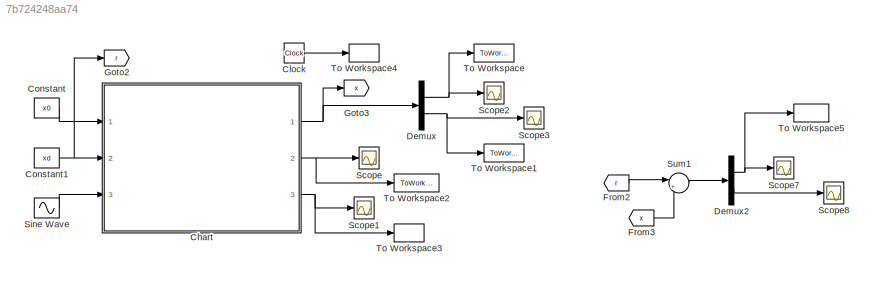
MODEL slx_7b724248aa74
KIND model
CONFIG AbsTol = auto
CONFIG EnableMultiTasking = on
CONFIG FixedStep = 0.1
CONFIG InitFcn = clear\nclc\n%% dati\nw0 = 5.278;\nalfa1 = w0^2;\nalfa3 = -1.402*w0^2;\nalfa5 = 0.271*w0^2;\nmu1 = 0.086;\nmu3 = 0.1080;\n%% parametri SMC\nmu = 20;\nP = [1 3]';\nx0 = [-1.2 -0.18]';\nxd = [0 0]';\nAd = 5; %ampiezza disturbo\nfd = 2; %frequenza disturbo\nepsilon = 0.1; %boundary layer
CONFIG MaxStep = 1e-3
CONFIG MinStep = auto
CONFIG RelTol = 1e-3
CONFIG SampleTimeConstraint = Unconstrained
CONFIG SolverName = VariableStepAuto
CONFIG StartTime = 0.0
CONFIG StopTime = 20
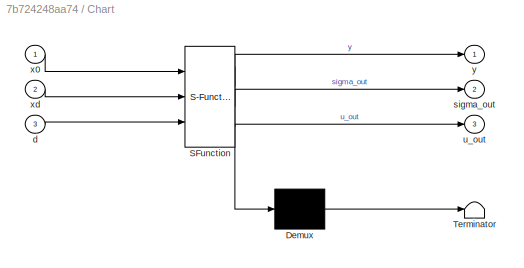
BLOCK [SubSystem] Chart
  ErrorFcn = Stateflow.Translate.translate
  PermitHierarchicalResolution = ExplicitOnly
  Ports = [3, 3]
  RequestExecContextInheritance = off
  SFBlockType = Chart
  TreatAsAtomicUnit = on
BLOCK [Demux] Chart/ Demux 
  Outputs = 1
  Ports = [1, 1]
BLOCK [S-Function] Chart/ SFunction 
  EnableBusSupport = on
  FunctionName = sf_sfun
  Parameters = P,alfa1,alfa3,alfa5,mu,mu1,mu3
  PortCounts = [3 4]
  Ports = [3, 4]
  SFcnIsStateOwnerBlock = off
  SFunctionDeploymentMode = off
  Tag = Stateflow S-Function 3
BLOCK [Terminator] Chart/ Terminator 
BLOCK [Inport] Chart/d
  Port = 3
BLOCK [Outport] Chart/sigma_out
  Port = 2
BLOCK [Outport] Chart/u_out
  Port = 3
BLOCK [Inport] Chart/x0
BLOCK [Inport] Chart/xd
  Port = 2
BLOCK [Outport] Chart/y
BLOCK [Clock] Clock
BLOCK [Constant] Constant
  Value = x0
BLOCK [Constant] Constant1
  Value = xd
BLOCK [Demux] Demux
  Outputs = 2
  Ports = [1, 2]
BLOCK [Demux] Demux2
  Outputs = 2
  Ports = [1, 2]
BLOCK [From] From2
  GotoTag = r
BLOCK [From] From3
  GotoTag = x
BLOCK [Goto] Goto2
  GotoTag = r
BLOCK [Goto] Goto3
  GotoTag = x
BLOCK [Scope] Scope
  Floating = off
  NumInputPorts = 1
  Ports = [1]
  ScopeSpecificationString = Simulink.scopes.TimeScopeBlockCfg('CurrentConfiguration', extmgr.ConfigurationSet(extmgr.Configuration('Core','General UI',true),extmgr.Configuration('Core','Source UI',true),extmgr.Configuration('Sources','WiredSimulink',true),extmgr.Configuration('Visuals','Time Domain',true,'SerializedDisplays',{struct('MinYLimReal','-1.9575','MaxYLimReal','0.2175','YLabelReal','','MinYLimMag','0.00000','MaxYLi...<+1329ch>
BLOCK [Scope] Scope1
  Floating = off
  NumInputPorts = 1
  Ports = [1]
  ScopeSpecificationString = Simulink.scopes.TimeScopeBlockCfg('CurrentConfiguration', extmgr.ConfigurationSet(extmgr.Configuration('Core','General UI',true),extmgr.Configuration('Core','Source UI',true),extmgr.Configuration('Sources','WiredSimulink',true,'DataLoggingVariableName','ScopeData1'),extmgr.Configuration('Visuals','Time Domain',true,'SerializedDisplays',{struct('MinYLimReal','-12.77069','MaxYLimReal','21.79842','YL...<+1409ch>
BLOCK [Scope] Scope2
  Floating = off
  NumInputPorts = 1
  Ports = [1]
  ScopeSpecificationString = Simulink.scopes.TimeScopeBlockCfg('CurrentConfiguration', extmgr.ConfigurationSet(extmgr.Configuration('Core','General UI',true),extmgr.Configuration('Core','Source UI',true),extmgr.Configuration('Sources','WiredSimulink',true,'DataLoggingVariableName','ScopeData2'),extmgr.Configuration('Visuals','Time Domain',true,'SerializedDisplays',{struct('MinYLimReal','-1.3525','MaxYLimReal','0.14855','YLabe...<+1435ch>
BLOCK [Scope] Scope3
  Floating = off
  NumInputPorts = 1
  Ports = [1]
  ScopeSpecificationString = Simulink.scopes.TimeScopeBlockCfg('CurrentConfiguration', extmgr.ConfigurationSet(extmgr.Configuration('Core','General UI',true),extmgr.Configuration('Core','Source UI',true),extmgr.Configuration('Sources','WiredSimulink',true,'DataLoggingVariableName','ScopeData3'),extmgr.Configuration('Visuals','Time Domain',true,'SerializedDisplays',{struct('MinYLimReal','-0.24491','MaxYLimReal','0.40423','YLab...<+1366ch>
BLOCK [Scope] Scope7
  Floating = off
  NumInputPorts = 1
  Ports = [1]
  ScopeSpecificationString = Simulink.scopes.TimeScopeBlockCfg('CurrentConfiguration', extmgr.ConfigurationSet(extmgr.Configuration('Core','General UI',true),extmgr.Configuration('Core','Source UI',true),extmgr.Configuration('Sources','WiredSimulink',true,'DataLoggingVariableName','ScopeData1'),extmgr.Configuration('Visuals','Time Domain',true,'SerializedDisplays',{struct('MinYLimReal','-0.15283','MaxYLimReal','1.3986','YLabe...<+1436ch>
BLOCK [Scope] Scope8
  Floating = off
  NumInputPorts = 1
  Ports = [1]
  ScopeSpecificationString = Simulink.scopes.TimeScopeBlockCfg('CurrentConfiguration', extmgr.ConfigurationSet(extmgr.Configuration('Core','General UI',true),extmgr.Configuration('Core','Source UI',true),extmgr.Configuration('Sources','WiredSimulink',true,'DataLoggingVariableName','ScopeData2'),extmgr.Configuration('Visuals','Time Domain',true,'SerializedDisplays',{struct('MinYLimReal','-0.24491','MaxYLimReal','0.40423','YLab...<+1366ch>
BLOCK [Sin] Sine Wave
  Amplitude = Ad
  Ports = [0, 1]
  SampleTime = 0
BLOCK [Sum] Sum1
  Inputs = |+-
  Ports = [2, 1]
BLOCK [ToWorkspace] To Workspace
  FixptAsFi = on
  MaxDataPoints = inf
  Ports = [1]
  SampleTime = -1
  Save2DSignal = 2-D array (concatenate along first dimension)
  VariableName = x1
BLOCK [ToWorkspace] To Workspace1
  FixptAsFi = on
  MaxDataPoints = inf
  Ports = [1]
  SampleTime = -1
  Save2DSignal = 2-D array (concatenate along first dimension)
  VariableName = x2
BLOCK [ToWorkspace] To Workspace2
  FixptAsFi = on
  MaxDataPoints = inf
  Ports = [1]
  SampleTime = -1
  Save2DSignal = 2-D array (concatenate along first dimension)
  VariableName = sigma
BLOCK [ToWorkspace] To Workspace3
  FixptAsFi = on
  MaxDataPoints = inf
  Ports = [1]
  SampleTime = -1
  Save2DSignal = 2-D array (concatenate along first dimension)
  VariableName = u
BLOCK [ToWorkspace] To Workspace4
  FixptAsFi = on
  MaxDataPoints = inf
  Ports = [1]
  SampleTime = -1
  Save2DSignal = 2-D array (concatenate along first dimension)
  VariableName = t
BLOCK [ToWorkspace] To Workspace5
  FixptAsFi = on
  MaxDataPoints = inf
  Ports = [1]
  SampleTime = -1
  Save2DSignal = 2-D array (concatenate along first dimension)
  VariableName = e
NET Chart:1 -> Demux:1, Goto3:1
NET Chart:2 -> Scope:1, To Workspace2:1
NET Chart:3 -> Scope1:1, To Workspace3:1
LINE Clock:1 -> To Workspace4:1
NET Constant1:1 -> Chart:2, Goto2:1
LINE Constant:1 -> Chart:1
NET Demux2:1 -> Scope7:1, To Workspace5:1
LINE Demux2:2 -> Scope8:1
NET Demux:1 -> Scope2:1, To Workspace:1
NET Demux:2 -> Scope3:1, To Workspace1:1
LINE From2:1 -> Sum1:1
LINE From3:1 -> Sum1:2
LINE Sine Wave:1 -> Chart:3
LINE Sum1:1 -> Demux2:1
note: NET lines group one-source signal fan-out (src -> all destinations, sorted); 1:1 wires keep LINE
CHART Chart states=13 transitions=10
  STATE_LABEL 'u_eq_val = u_eq'
  STATE_LABEL 'SCRIPT:\nfunction u_eq_val = u_eq\n\nu_eq_val = -(P(1)/P(2))*x(2) + 2*mu1*x(2) + mu3*x(2)^3 + alfa1*x(1) + alfa3*x(1)^3 + alfa5*x(1)^5;\n\nend'
  STATE_LABEL 'u_sw_p_val = u_sw_p'
  STATE_LABEL 'SCRIPT:\nfunction u_sw_p_val = u_sw_p\n\nu_sw_p_val = -mu/P(2);\n\nend '
  STATE_LABEL 'u_sw_m_val = u_sw_m'
  STATE_LABEL 'SCRIPT:\nfunction u_sw_m_val = u_sw_m\n\nu_sw_m_val = mu/P(2);\n\nend '
  STATE_LABEL 'sigma_val = sigma'
  STATE_LABEL "SCRIPT:\nfunction sigma_val = sigma\n\nsigma_val = P' * (x-xd);\n\nend"
  STATE_LABEL 'Fp_val = Fp'
  STATE_LABEL 'SCRIPT:\nfunction Fp_val = Fp\n\nu = u_eq + u_sw_p;\nFp_val = [x(2);... \n          -2*mu1*x(2) - mu3*x(2)^3 - alfa1*x(1) - alfa3*x(1)^3 - alfa5*x(1)^5 + d + u];\n\nend'
  STATE_LABEL 'Fm_val = Fm'
  STATE_LABEL 'SCRIPT:\nfunction Fm_val = Fm\n\nu = u_eq + u_sw_m;\nFm_val = [x(2);... \n          -2*mu1*x(2) - mu3*x(2)^3 - alfa1*x(1) - alfa3*x(1)^3 - alfa5*x(1)^5 + d + u];\n\nend'
  STATE_LABEL 'Fs_val = Fs'
  STATE_LABEL 'SCRIPT:\nfunction Fs_val = Fs\n\nFs_val = [-(P(1)/P(2))*x(1); -(P(1)/P(2))*x(2)];\n\nend'
  STATE_LABEL 'L_Fp_sigma_val = L_Fp_sigma'
  STATE_LABEL "SCRIPT:\nfunction L_Fp_sigma_val = L_Fp_sigma\n\nL_Fp_sigma_val = P' * Fp;\n\nend"
  STATE_LABEL 'L_Fm_sigma_val = L_Fm_sigma'
  STATE_LABEL "SCRIPT:\nfunction L_Fm_sigma_val = L_Fm_sigma\n\nL_Fm_sigma_val = P' * Fm;\n\nend"
  STATE_LABEL 'roll_plus_mode\nduring:\nx_dot = Fp;\ny = x;\nsigma_out = sigma;\nu_out = u_eq+u_sw_p;'
  STATE_LABEL 'roll_minus_mode\nduring:\nx_dot = Fm;\ny = x;\nsigma_out = sigma;\nu_out = u_eq+u_sw_m;'
  STATE_LABEL 'roll_init\nen:\nx=x0;\ny = x;\nsigma_out = sigma;\nu_out = 0;'
  STATE_LABEL 'roll_sliding_mode\nduring:\nx_dot = Fs;\ny = x;\nsigma_out = sigma;\nu_out = u_eq;'
CHART  states=0 transitions=0
